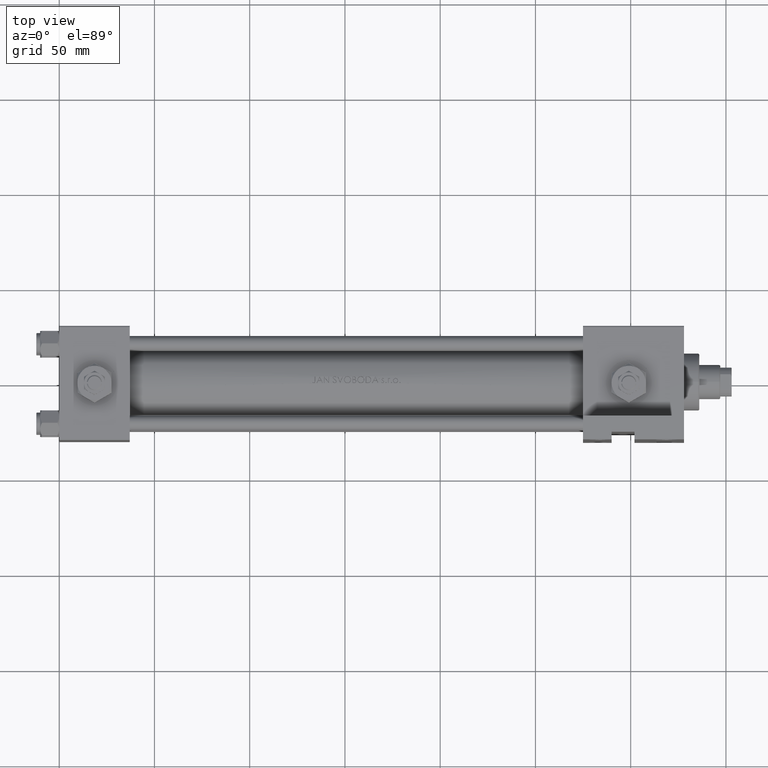
[diagram: clean part render]
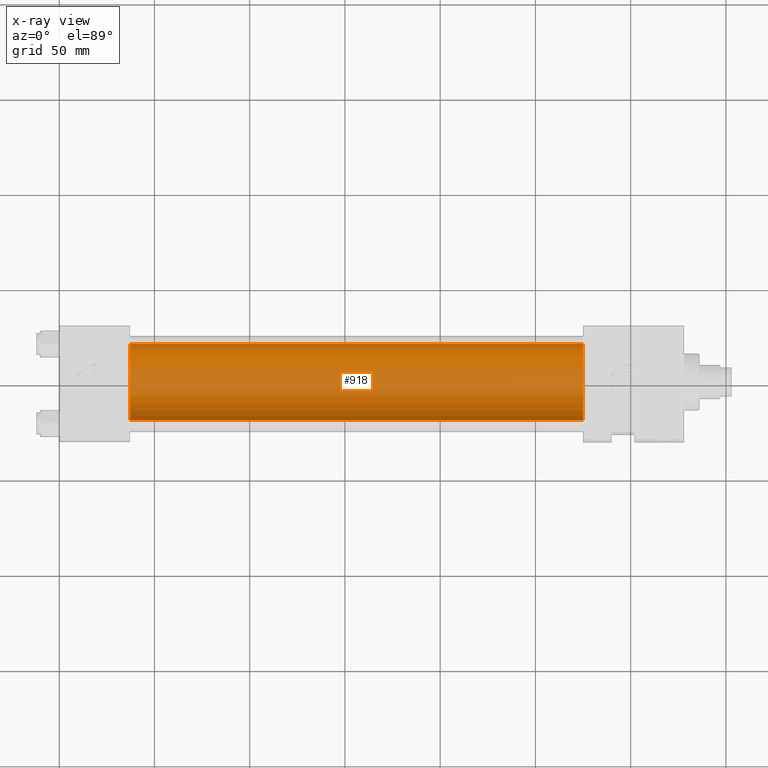
[diagram: x-ray — body ghosted, one internal face saturated and labeled with its STEP entity id]
A machine part, top view, then the same camera in x-ray: the body is ghosted and one INTERNAL B-rep face — a face not visible from any outside direction — is saturated and labeled: STEP entity #918.
In plain terms, the highlighted cylindrical surface (partial cylindrical patch) has radius 20 mm, axis along (-1, -0, 0).
Its self-contained STEP definition (entity closure, byte-faithful):
#241 = EDGE_CURVE ( 'NONE', #23698, #36578, #26290, .T. ) ;
#918 = ADVANCED_FACE ( 'NONE', ( #5401 ), #13092, .F. ) ;
#1863 = DIRECTION ( 'NONE',  ( 0.000000000000000000, 0.000000000000000000, -1.000000000000000000 ) ) ;
#3124 = DIRECTION ( 'NONE',  ( 0.000000000000000000, 0.000000000000000000, -1.000000000000000000 ) ) ;
#4031 = ORIENTED_EDGE ( 'NONE', *, *, #36151, .T. ) ;
#5401 = FACE_OUTER_BOUND ( 'NONE', #21049, .T. ) ;
#9361 = DIRECTION ( 'NONE',  ( -1.000000000000000000, -0.000000000000000000, -0.000000000000000000 ) ) ;
#11639 = DIRECTION ( 'NONE',  ( -1.000000000000000000, -0.000000000000000000, -0.000000000000000000 ) ) ;
#11780 = CIRCLE ( 'NONE', #20833, 20.00000000000000000 ) ;
#11931 = VERTEX_POINT ( 'NONE', #15924 ) ;
#13092 = CYLINDRICAL_SURFACE ( 'NONE', #44703, 20.00000000000000000 ) ;
#15924 = CARTESIAN_POINT ( 'NONE',  ( 274.9999999999999432, 2.326828918379970970E-15, -19.00000000000000000 ) ) ;
#18077 = CARTESIAN_POINT ( 'NONE',  ( 274.9999999999999432, 2.326828918379970970E-15, -19.00000000000000000 ) ) ;
#19531 = DIRECTION ( 'NONE',  ( 1.000000000000000000, 0.000000000000000000, 0.000000000000000000 ) ) ;
#20833 = AXIS2_PLACEMENT_3D ( 'NONE', #27847, #35324, #1863 ) ;
#21049 = EDGE_LOOP ( 'NONE', ( #42903, #4031, #26414, #29382 ) ) ;
#23698 = VERTEX_POINT ( 'NONE', #34064 ) ;
#25394 = CARTESIAN_POINT ( 'NONE',  ( 37.00000000000000000, 2.326828918379970970E-15, -19.00000000000000000 ) ) ;
#26290 = LINE ( 'NONE', #46568, #44669 ) ;
#26414 = ORIENTED_EDGE ( 'NONE', *, *, #241, .T. ) ;
#27847 = CARTESIAN_POINT ( 'NONE',  ( 37.00000000000000000, -1.224646799147354686E-16, 1.000000000000000888 ) ) ;
#28389 = VERTEX_POINT ( 'NONE', #25394 ) ;
#28742 = CARTESIAN_POINT ( 'NONE',  ( 274.9999999999999432, -1.224646799147354686E-16, 1.000000000000000888 ) ) ;
#29106 = LINE ( 'NONE', #18077, #36163 ) ;
#29382 = ORIENTED_EDGE ( 'NONE', *, *, #41377, .F. ) ;
#31418 = CIRCLE ( 'NONE', #41260, 20.00000000000000000 ) ;
#31499 = EDGE_CURVE ( 'NONE', #11931, #28389, #29106, .T. ) ;
#34064 = CARTESIAN_POINT ( 'NONE',  ( 274.9999999999999432, -1.224646799147354686E-16, 21.00000000000000000 ) ) ;
#34948 = CARTESIAN_POINT ( 'NONE',  ( 274.9999999999999432, -1.224646799147354686E-16, 1.000000000000000888 ) ) ;
#35324 = DIRECTION ( 'NONE',  ( 1.000000000000000000, 0.000000000000000000, 0.000000000000000000 ) ) ;
#36151 = EDGE_CURVE ( 'NONE', #11931, #23698, #31418, .T. ) ;
#36163 = VECTOR ( 'NONE', #9361, 1000.000000000000000 ) ;
#36578 = VERTEX_POINT ( 'NONE', #48187 ) ;
#40825 = DIRECTION ( 'NONE',  ( -1.000000000000000000, -0.000000000000000000, -0.000000000000000000 ) ) ;
#41260 = AXIS2_PLACEMENT_3D ( 'NONE', #34948, #19531, #3124 ) ;
#41377 = EDGE_CURVE ( 'NONE', #28389, #36578, #11780, .T. ) ;
#42903 = ORIENTED_EDGE ( 'NONE', *, *, #31499, .F. ) ;
#44413 = DIRECTION ( 'NONE',  ( 0.000000000000000000, 0.000000000000000000, 1.000000000000000000 ) ) ;
#44669 = VECTOR ( 'NONE', #11639, 1000.000000000000000 ) ;
#44703 = AXIS2_PLACEMENT_3D ( 'NONE', #28742, #40825, #44413 ) ;
#46568 = CARTESIAN_POINT ( 'NONE',  ( 274.9999999999999432, -1.224646799147354686E-16, 21.00000000000000000 ) ) ;
#48187 = CARTESIAN_POINT ( 'NONE',  ( 37.00000000000000000, -1.224646799147354686E-16, 21.00000000000000000 ) ) ;